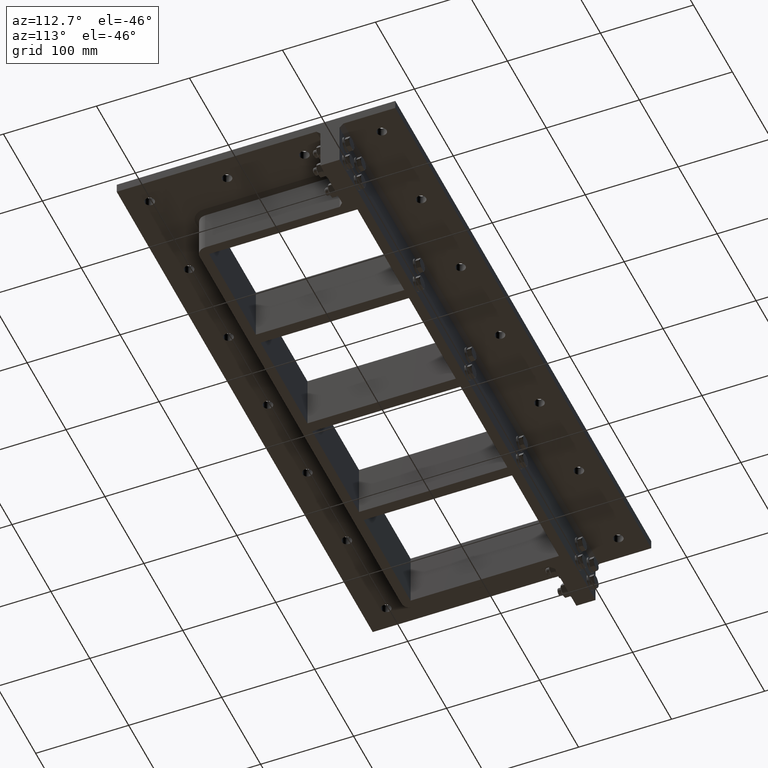
[diagram: clean part render]
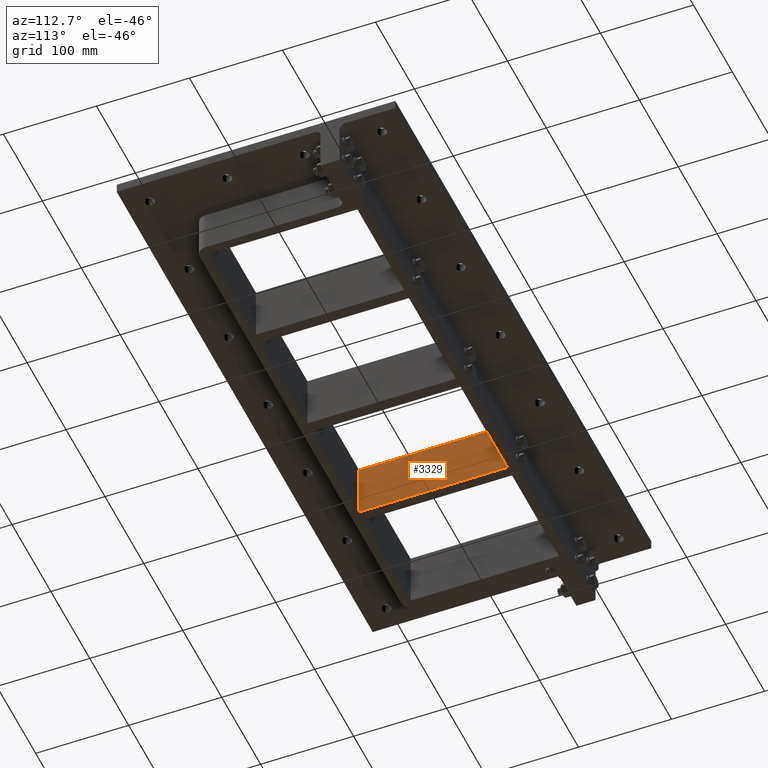
[diagram: same view with one face highlighted and labeled with its STEP entity id]
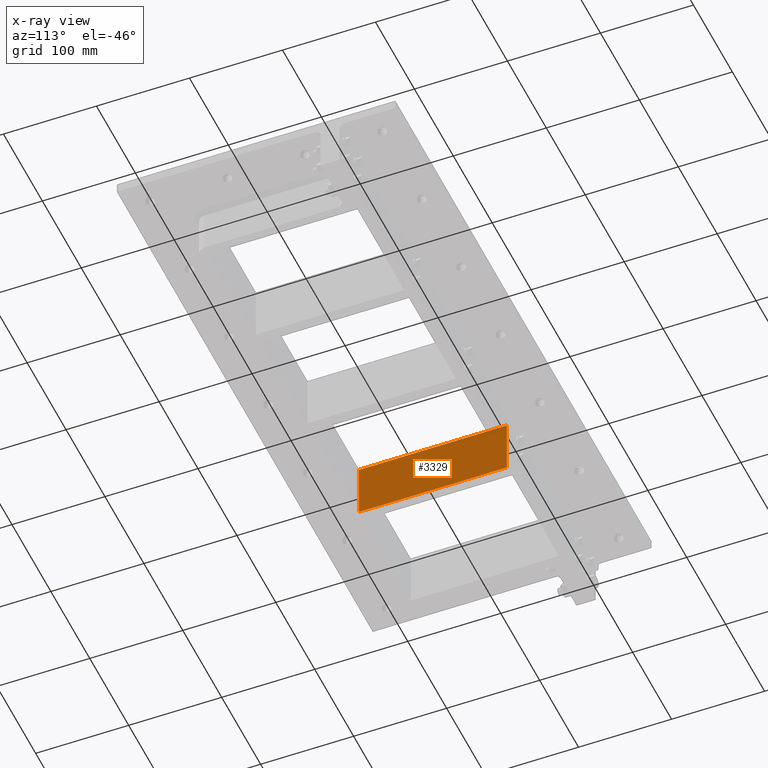
[diagram: x-ray of the same camera — body ghosted, the highlighted face saturated]
A machine part, auxiliary view. The second image highlights one B-rep face of the part: STEP entity #3329.
The next image is the same camera in x-ray: the body ghosted, the highlighted face saturated — about 1% of this face is hidden behind the body in this view.
In plain terms, the highlighted planar face has unit normal (-1, -0, 0).
Its self-contained STEP definition (entity closure, byte-faithful):
#622=FACE_OUTER_BOUND('',#845,.T.);
#845=EDGE_LOOP('',(#2627,#2628,#2629,#2630));
#1098=LINE('',#5255,#1357);
#1126=LINE('',#5312,#1385);
#1135=LINE('',#5350,#1394);
#1158=LINE('',#5397,#1417);
#1357=VECTOR('',#4248,10.);
#1385=VECTOR('',#4282,10.);
#1394=VECTOR('',#4323,10.);
#1417=VECTOR('',#4394,10.);
#1627=VERTEX_POINT('',#5252);
#1628=VERTEX_POINT('',#5254);
#1653=VERTEX_POINT('',#5309);
#1654=VERTEX_POINT('',#5311);
#1944=EDGE_CURVE('',#1627,#1628,#1098,.T.);
#1974=EDGE_CURVE('',#1653,#1654,#1126,.T.);
#1994=EDGE_CURVE('',#1627,#1654,#1135,.T.);
#2017=EDGE_CURVE('',#1653,#1628,#1158,.T.);
#2627=ORIENTED_EDGE('',*,*,#1994,.T.);
#2628=ORIENTED_EDGE('',*,*,#1974,.F.);
#2629=ORIENTED_EDGE('',*,*,#2017,.T.);
#2630=ORIENTED_EDGE('',*,*,#1944,.F.);
#3205=PLANE('',#3778);
#3329=ADVANCED_FACE('',(#622),#3205,.F.);
#3778=AXIS2_PLACEMENT_3D('',#5398,#4395,#4396);
#4248=DIRECTION('',(2.22740669517273E-16,-1.,0.));
#4282=DIRECTION('',(-2.22740669517273E-16,1.,0.));
#4323=DIRECTION('',(0.,0.,1.));
#4394=DIRECTION('',(0.,0.,-1.));
#4395=DIRECTION('center_axis',(-1.,-2.22740669517273E-16,0.));
#4396=DIRECTION('ref_axis',(-2.22740669517273E-16,1.,0.));
#5252=CARTESIAN_POINT('',(-126.5,79.25,-60.));
#5254=CARTESIAN_POINT('',(-126.5,-79.75,-60.));
#5255=CARTESIAN_POINT('',(-126.5,-39.875,-60.));
#5309=CARTESIAN_POINT('',(-126.5,-79.75,0.));
#5311=CARTESIAN_POINT('',(-126.5,79.25,0.));
#5312=CARTESIAN_POINT('',(-126.5,-39.875,0.));
#5350=CARTESIAN_POINT('',(-126.5,79.25,0.));
#5397=CARTESIAN_POINT('',(-126.5,-79.75,0.));
#5398=CARTESIAN_POINT('Origin',(-126.5,-79.75,0.));